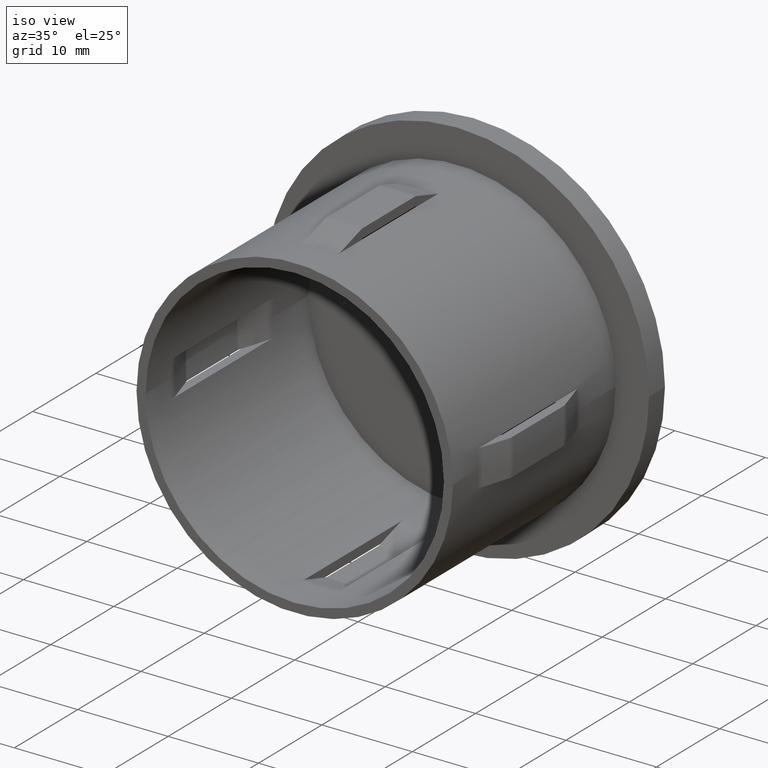
[diagram: clean part render]
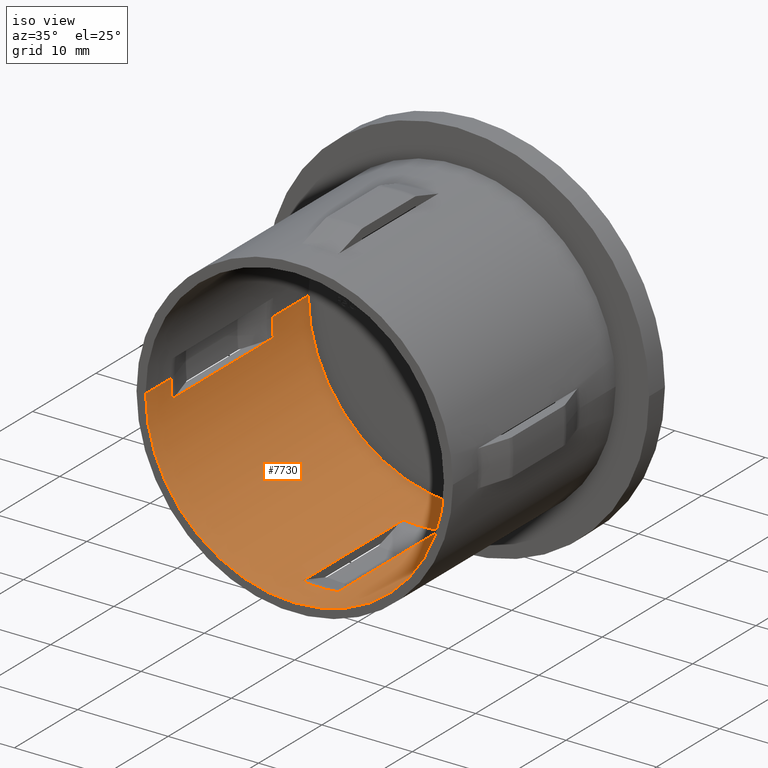
[diagram: same view with one face highlighted and labeled with its STEP entity id]
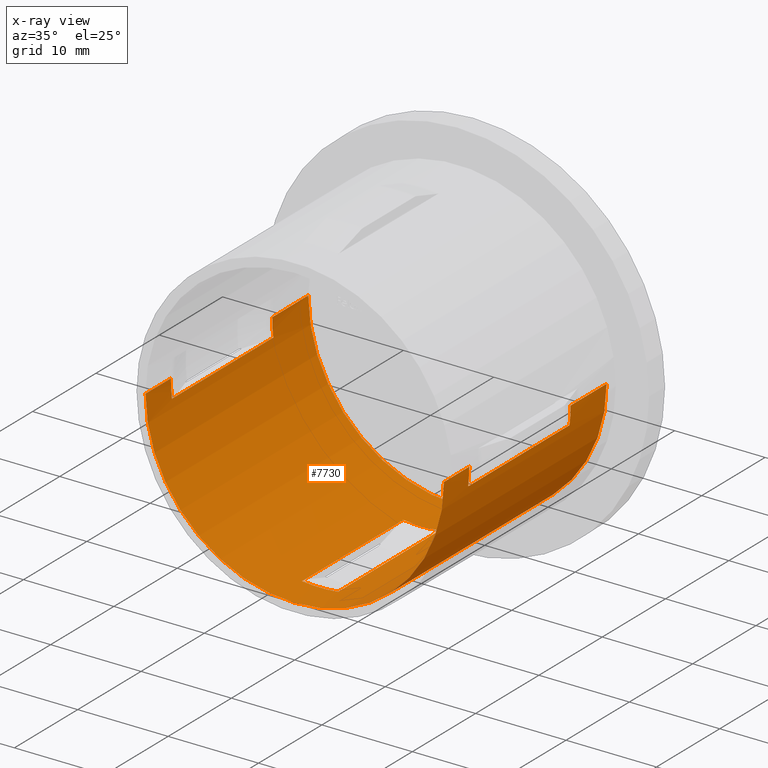
[diagram: x-ray of the same camera — body ghosted, the highlighted face saturated]
A machine part, iso view. The second image highlights one B-rep face of the part: STEP entity #7730.
The next image is the same camera in x-ray: the body ghosted, the highlighted face saturated — about 0% of this face is hidden behind the body in this view.
In plain terms, the highlighted cylindrical surface (partial cylindrical patch) has radius 16.5 mm, axis along (-0, 1, -0).
Its self-contained STEP definition (entity closure, byte-faithful):
#404 = CARTESIAN_POINT ( 'NONE',  ( 3.904173995681768100E-015, 3.999999999999996400, 0.0000000000000000000 ) ) ;
#426 = AXIS2_PLACEMENT_3D ( 'NONE', #9731, #8408, #5882 ) ;
#446 = EDGE_CURVE ( 'NONE', #11712, #1879, #7234, .T. ) ;
#758 = CIRCLE ( 'NONE', #9175, 16.50000000000000000 ) ;
#1260 = CARTESIAN_POINT ( 'NONE',  ( -16.50000000000000400, 19.99999999999998900, 0.0000000000000000000 ) ) ;
#1389 = CARTESIAN_POINT ( 'NONE',  ( 4.589976203204287100E-015, -3.469446951953614200E-015, 0.0000000000000000000 ) ) ;
#1434 = CARTESIAN_POINT ( 'NONE',  ( -16.49999999999999600, 3.999999999999994200, 0.0000000000000000000 ) ) ;
#1665 = ORIENTED_EDGE ( 'NONE', *, *, #16029, .F. ) ;
#1879 = VERTEX_POINT ( 'NONE', #12726 ) ;
#2005 = EDGE_CURVE ( 'NONE', #10674, #12414, #12899, .T. ) ;
#2108 = CARTESIAN_POINT ( 'NONE',  ( -16.49999999999999300, -6.298381057984003800E-015, 0.0000000000000000000 ) ) ;
#2351 = AXIS2_PLACEMENT_3D ( 'NONE', #11135, #8826, #4875 ) ;
#2521 = DIRECTION ( 'NONE',  ( 0.0000000000000000000, -1.000000000000000000, 0.0000000000000000000 ) ) ;
#2678 = VECTOR ( 'NONE', #7697, 1000.000000000000000 ) ;
#2875 = CARTESIAN_POINT ( 'NONE',  ( 2.000000000000006700, 19.99999999999999300, -16.37833935415920200 ) ) ;
#2965 = AXIS2_PLACEMENT_3D ( 'NONE', #1389, #15245, #5148 ) ;
#2985 = VECTOR ( 'NONE', #5910, 1000.000000000000000 ) ;
#3246 = CARTESIAN_POINT ( 'NONE',  ( 16.50000000000000000, 28.20000000000000300, 2.020667218593133100E-015 ) ) ;
#3277 = DIRECTION ( 'NONE',  ( -1.714505518806297100E-016, 1.000000000000000000, -0.0000000000000000000 ) ) ;
#3495 = EDGE_LOOP ( 'NONE', ( #7429, #9454, #11920, #8922 ) ) ;
#3826 = CARTESIAN_POINT ( 'NONE',  ( -16.50000000000000000, 28.19999999999999600, 0.0000000000000000000 ) ) ;
#4167 = CARTESIAN_POINT ( 'NONE',  ( 1.160965165591693700E-015, 19.99999999999999300, 0.0000000000000000000 ) ) ;
#4222 = CIRCLE ( 'NONE', #6034, 16.50000000000000400 ) ;
#4372 = ORIENTED_EDGE ( 'NONE', *, *, #9575, .T. ) ;
#4509 = VERTEX_POINT ( 'NONE', #6189 ) ;
#4550 = VECTOR ( 'NONE', #12589, 1000.000000000000000 ) ;
#4627 = DIRECTION ( 'NONE',  ( -1.000000000000000000, -2.102695122396129900E-016, 0.0000000000000000000 ) ) ;
#4642 = CARTESIAN_POINT ( 'NONE',  ( -16.37833935415919500, 47.45815458154230300, -2.000000000000000000 ) ) ;
#4662 = VERTEX_POINT ( 'NONE', #8935 ) ;
#4771 = AXIS2_PLACEMENT_3D ( 'NONE', #404, #15446, #10519 ) ;
#4875 = DIRECTION ( 'NONE',  ( -1.000000000000000000, -2.102695122396129400E-016, 0.0000000000000000000 ) ) ;
#5148 = DIRECTION ( 'NONE',  ( -1.000000000000000000, -1.714505518806297100E-016, 0.0000000000000000000 ) ) ;
#5202 = CARTESIAN_POINT ( 'NONE',  ( 16.37833935415920200, 20.00000000000000400, -2.000000000000000000 ) ) ;
#5684 = CIRCLE ( 'NONE', #7637, 16.50000000000000400 ) ;
#5708 = ORIENTED_EDGE ( 'NONE', *, *, #446, .T. ) ;
#5756 = VERTEX_POINT ( 'NONE', #9960 ) ;
#5882 = DIRECTION ( 'NONE',  ( -1.000000000000000000, -1.577021341797097300E-016, 0.0000000000000000000 ) ) ;
#5910 = DIRECTION ( 'NONE',  ( -1.714505518806297100E-016, 1.000000000000000000, -0.0000000000000000000 ) ) ;
#5932 = CARTESIAN_POINT ( 'NONE',  ( -2.449293598294708900E-016, 28.19999999999999900, 0.0000000000000000000 ) ) ;
#5937 = CARTESIAN_POINT ( 'NONE',  ( -1.999999999999993600, 3.999999999999996400, -16.37833935415920200 ) ) ;
#6034 = AXIS2_PLACEMENT_3D ( 'NONE', #4167, #11570, #6512 ) ;
#6170 = VECTOR ( 'NONE', #6779, 1000.000000000000000 ) ;
#6189 = CARTESIAN_POINT ( 'NONE',  ( -16.50000000000000000, 25.69999999999999200, 0.0000000000000000000 ) ) ;
#6231 = EDGE_CURVE ( 'NONE', #10674, #11712, #6526, .T. ) ;
#6309 = CARTESIAN_POINT ( 'NONE',  ( -1.999999999999996700, 20.00000000000000000, -16.37833935415919800 ) ) ;
#6447 = CARTESIAN_POINT ( 'NONE',  ( 16.50000000000000000, 25.69999999999999900, 2.020667218593133100E-015 ) ) ;
#6512 = DIRECTION ( 'NONE',  ( -1.000000000000000000, -2.102695122396129400E-016, 0.0000000000000000000 ) ) ;
#6526 = LINE ( 'NONE', #8789, #14397 ) ;
#6779 = DIRECTION ( 'NONE',  ( -1.714505518806297100E-016, 1.000000000000000000, -0.0000000000000000000 ) ) ;
#6803 = DIRECTION ( 'NONE',  ( -1.000000000000000000, -2.102695122396129400E-016, 0.0000000000000000000 ) ) ;
#6953 = VERTEX_POINT ( 'NONE', #6447 ) ;
#6972 = FACE_BOUND ( 'NONE', #3495, .T. ) ;
#6984 = ORIENTED_EDGE ( 'NONE', *, *, #10560, .F. ) ;
#7087 = LINE ( 'NONE', #3826, #4550 ) ;
#7147 = LINE ( 'NONE', #7658, #8515 ) ;
#7234 = CIRCLE ( 'NONE', #4771, 16.50000000000000000 ) ;
#7333 = CARTESIAN_POINT ( 'NONE',  ( 3.904173995681768100E-015, 3.999999999999996400, 0.0000000000000000000 ) ) ;
#7429 = ORIENTED_EDGE ( 'NONE', *, *, #10439, .T. ) ;
#7439 = ORIENTED_EDGE ( 'NONE', *, *, #6231, .T. ) ;
#7567 = DIRECTION ( 'NONE',  ( -1.714505518806297100E-016, 1.000000000000000000, -0.0000000000000000000 ) ) ;
#7637 = AXIS2_PLACEMENT_3D ( 'NONE', #10385, #10544, #6803 ) ;
#7658 = CARTESIAN_POINT ( 'NONE',  ( 2.000000000000004400, 47.45815458154230300, -16.37833935415919800 ) ) ;
#7697 = DIRECTION ( 'NONE',  ( 0.0000000000000000000, -1.000000000000000000, 0.0000000000000000000 ) ) ;
#7730 = ADVANCED_FACE ( 'NONE', ( #6972, #14229 ), #8892, .F. ) ;
#7875 = ORIENTED_EDGE ( 'NONE', *, *, #8623, .F. ) ;
#7938 = LINE ( 'NONE', #15604, #6170 ) ;
#7974 = ORIENTED_EDGE ( 'NONE', *, *, #13657, .T. ) ;
#8149 = VERTEX_POINT ( 'NONE', #6309 ) ;
#8241 = LINE ( 'NONE', #8739, #13356 ) ;
#8362 = CIRCLE ( 'NONE', #2351, 16.50000000000000400 ) ;
#8408 = DIRECTION ( 'NONE',  ( -1.714505518806297100E-016, 1.000000000000000000, -0.0000000000000000000 ) ) ;
#8495 = EDGE_CURVE ( 'NONE', #13541, #12735, #758, .T. ) ;
#8515 = VECTOR ( 'NONE', #2521, 1000.000000000000000 ) ;
#8623 = EDGE_CURVE ( 'NONE', #10481, #9135, #8362, .T. ) ;
#8685 = VERTEX_POINT ( 'NONE', #5202 ) ;
#8739 = CARTESIAN_POINT ( 'NONE',  ( 16.37833935415920200, 47.45815458154230300, -2.000000000000000000 ) ) ;
#8789 = CARTESIAN_POINT ( 'NONE',  ( 16.50000000000000000, 28.20000000000000300, 2.020667218593133100E-015 ) ) ;
#8826 = DIRECTION ( 'NONE',  ( -1.714505518806297100E-016, 1.000000000000000000, -0.0000000000000000000 ) ) ;
#8892 = CYLINDRICAL_SURFACE ( 'NONE', #11699, 16.50000000000000000 ) ;
#8922 = ORIENTED_EDGE ( 'NONE', *, *, #15356, .F. ) ;
#8935 = CARTESIAN_POINT ( 'NONE',  ( 16.50000000000000400, 19.99999999999999600, 2.020667218593133500E-015 ) ) ;
#9036 = CIRCLE ( 'NONE', #426, 16.50000000000000000 ) ;
#9135 = VERTEX_POINT ( 'NONE', #1260 ) ;
#9175 = AXIS2_PLACEMENT_3D ( 'NONE', #7333, #14654, #9662 ) ;
#9350 = EDGE_CURVE ( 'NONE', #8149, #12735, #13272, .T. ) ;
#9454 = ORIENTED_EDGE ( 'NONE', *, *, #8495, .T. ) ;
#9575 = EDGE_CURVE ( 'NONE', #6953, #4509, #9925, .T. ) ;
#9662 = DIRECTION ( 'NONE',  ( -1.000000000000000000, -1.577021341797097300E-016, 0.0000000000000000000 ) ) ;
#9731 = CARTESIAN_POINT ( 'NONE',  ( 3.904173995681768100E-015, 3.999999999999996400, 0.0000000000000000000 ) ) ;
#9910 = VECTOR ( 'NONE', #12053, 1000.000000000000000 ) ;
#9925 = CIRCLE ( 'NONE', #15590, 16.50000000000000000 ) ;
#9960 = CARTESIAN_POINT ( 'NONE',  ( -16.37833935415919800, 3.999999999999994200, -1.999999999999999600 ) ) ;
#10036 = LINE ( 'NONE', #3246, #2985 ) ;
#10101 = ORIENTED_EDGE ( 'NONE', *, *, #15036, .T. ) ;
#10363 = VERTEX_POINT ( 'NONE', #1434 ) ;
#10385 = CARTESIAN_POINT ( 'NONE',  ( 1.160965165591693700E-015, 19.99999999999999300, 0.0000000000000000000 ) ) ;
#10439 = EDGE_CURVE ( 'NONE', #15289, #13541, #7147, .T. ) ;
#10464 = EDGE_CURVE ( 'NONE', #4662, #8685, #4222, .T. ) ;
#10481 = VERTEX_POINT ( 'NONE', #12878 ) ;
#10519 = DIRECTION ( 'NONE',  ( -1.000000000000000000, -1.577021341797097300E-016, 0.0000000000000000000 ) ) ;
#10544 = DIRECTION ( 'NONE',  ( -1.714505518806297100E-016, 1.000000000000000000, -0.0000000000000000000 ) ) ;
#10560 = EDGE_CURVE ( 'NONE', #9135, #4509, #7938, .T. ) ;
#10674 = VERTEX_POINT ( 'NONE', #11006 ) ;
#10747 = EDGE_CURVE ( 'NONE', #10481, #5756, #11280, .T. ) ;
#11006 = CARTESIAN_POINT ( 'NONE',  ( 16.50000000000000000, -6.405128459232243400E-016, 2.020667218593133100E-015 ) ) ;
#11135 = CARTESIAN_POINT ( 'NONE',  ( 1.160965165591693700E-015, 19.99999999999999300, 0.0000000000000000000 ) ) ;
#11280 = LINE ( 'NONE', #4642, #9910 ) ;
#11570 = DIRECTION ( 'NONE',  ( -1.714505518806297100E-016, 1.000000000000000000, -0.0000000000000000000 ) ) ;
#11699 = AXIS2_PLACEMENT_3D ( 'NONE', #5932, #3277, #13412 ) ;
#11712 = VERTEX_POINT ( 'NONE', #13680 ) ;
#11920 = ORIENTED_EDGE ( 'NONE', *, *, #9350, .F. ) ;
#12053 = DIRECTION ( 'NONE',  ( 0.0000000000000000000, -1.000000000000000000, 0.0000000000000000000 ) ) ;
#12153 = DIRECTION ( 'NONE',  ( -1.714505518806297100E-016, 1.000000000000000000, -0.0000000000000000000 ) ) ;
#12414 = VERTEX_POINT ( 'NONE', #2108 ) ;
#12589 = DIRECTION ( 'NONE',  ( -1.714505518806297100E-016, 1.000000000000000000, -0.0000000000000000000 ) ) ;
#12726 = CARTESIAN_POINT ( 'NONE',  ( 16.37833935415920500, 3.999999999999999100, -1.999999999999999600 ) ) ;
#12735 = VERTEX_POINT ( 'NONE', #5937 ) ;
#12878 = CARTESIAN_POINT ( 'NONE',  ( -16.37833935415920500, 19.99999999999998900, -2.000000000000000400 ) ) ;
#12899 = CIRCLE ( 'NONE', #2965, 16.49999999999999600 ) ;
#13272 = LINE ( 'NONE', #15330, #2678 ) ;
#13356 = VECTOR ( 'NONE', #15050, 1000.000000000000000 ) ;
#13412 = DIRECTION ( 'NONE',  ( -1.000000000000000000, -2.102695122396129900E-016, 0.0000000000000000000 ) ) ;
#13541 = VERTEX_POINT ( 'NONE', #14276 ) ;
#13657 = EDGE_CURVE ( 'NONE', #4662, #6953, #10036, .T. ) ;
#13680 = CARTESIAN_POINT ( 'NONE',  ( 16.50000000000000400, 3.999999999999999100, 2.020667218593133500E-015 ) ) ;
#13893 = EDGE_CURVE ( 'NONE', #12414, #10363, #7087, .T. ) ;
#13962 = ORIENTED_EDGE ( 'NONE', *, *, #10747, .T. ) ;
#14229 = FACE_OUTER_BOUND ( 'NONE', #15009, .T. ) ;
#14276 = CARTESIAN_POINT ( 'NONE',  ( 2.000000000000006700, 3.999999999999996400, -16.37833935415920200 ) ) ;
#14397 = VECTOR ( 'NONE', #7567, 1000.000000000000000 ) ;
#14486 = ORIENTED_EDGE ( 'NONE', *, *, #13893, .F. ) ;
#14507 = CARTESIAN_POINT ( 'NONE',  ( 1.836970198721037300E-016, 25.69999999999999600, 0.0000000000000000000 ) ) ;
#14654 = DIRECTION ( 'NONE',  ( -1.714505518806297100E-016, 1.000000000000000000, -0.0000000000000000000 ) ) ;
#15009 = EDGE_LOOP ( 'NONE', ( #15011, #7439, #5708, #1665, #15376, #7974, #4372, #6984, #7875, #13962, #10101, #14486 ) ) ;
#15011 = ORIENTED_EDGE ( 'NONE', *, *, #2005, .F. ) ;
#15036 = EDGE_CURVE ( 'NONE', #5756, #10363, #9036, .T. ) ;
#15050 = DIRECTION ( 'NONE',  ( 0.0000000000000000000, -1.000000000000000000, 0.0000000000000000000 ) ) ;
#15245 = DIRECTION ( 'NONE',  ( -1.714505518806297100E-016, 1.000000000000000000, -0.0000000000000000000 ) ) ;
#15289 = VERTEX_POINT ( 'NONE', #2875 ) ;
#15330 = CARTESIAN_POINT ( 'NONE',  ( -1.999999999999996700, 47.45815458154230300, -16.37833935415919800 ) ) ;
#15356 = EDGE_CURVE ( 'NONE', #15289, #8149, #5684, .T. ) ;
#15376 = ORIENTED_EDGE ( 'NONE', *, *, #10464, .F. ) ;
#15446 = DIRECTION ( 'NONE',  ( -1.714505518806297100E-016, 1.000000000000000000, -0.0000000000000000000 ) ) ;
#15590 = AXIS2_PLACEMENT_3D ( 'NONE', #14507, #12153, #4627 ) ;
#15604 = CARTESIAN_POINT ( 'NONE',  ( -16.50000000000000000, 28.19999999999999600, 0.0000000000000000000 ) ) ;
#16029 = EDGE_CURVE ( 'NONE', #8685, #1879, #8241, .T. ) ;